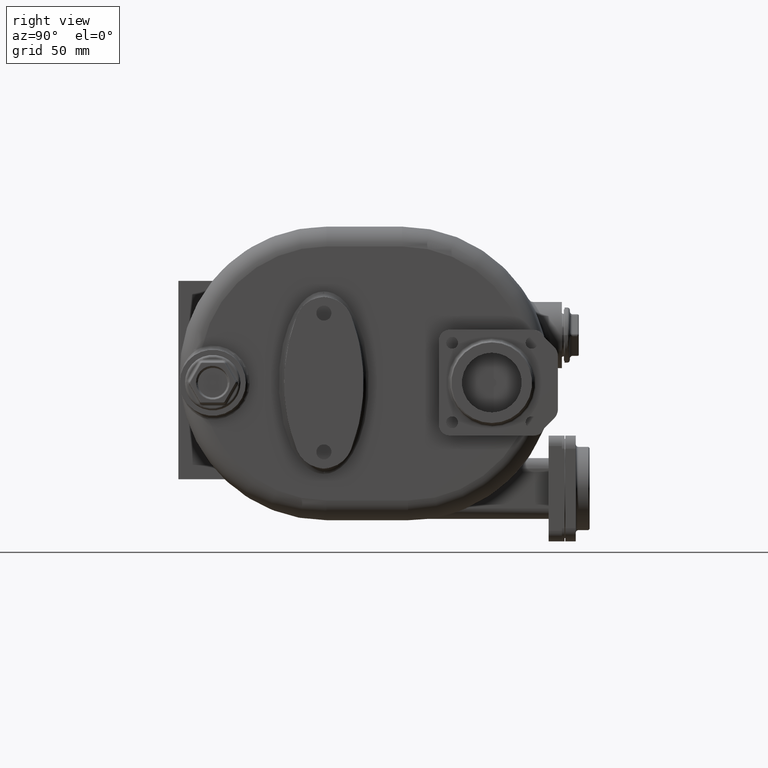
[diagram: clean part render]
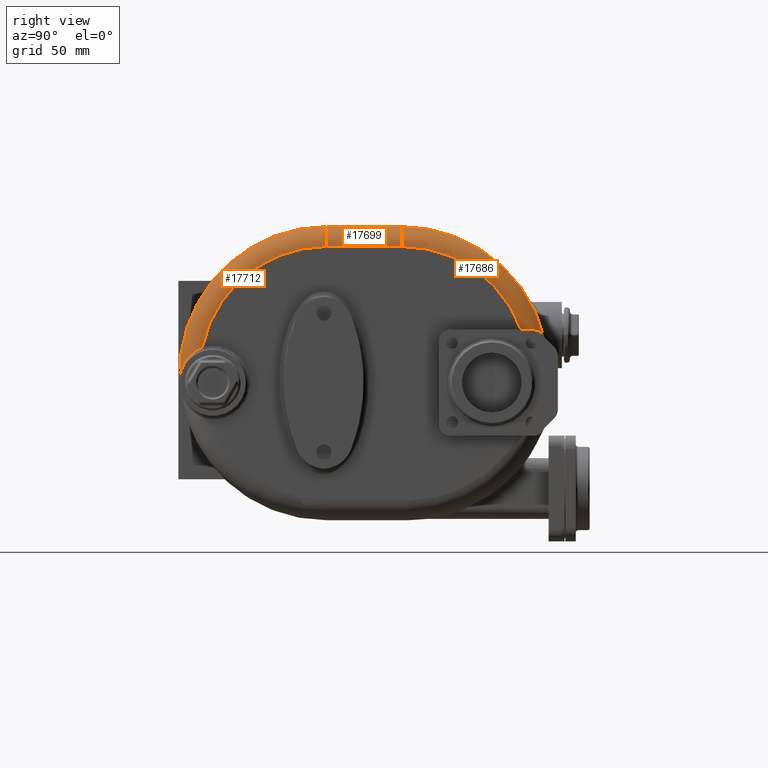
[diagram: same view with one multi-face feature highlighted, each face labeled with its STEP entity id]
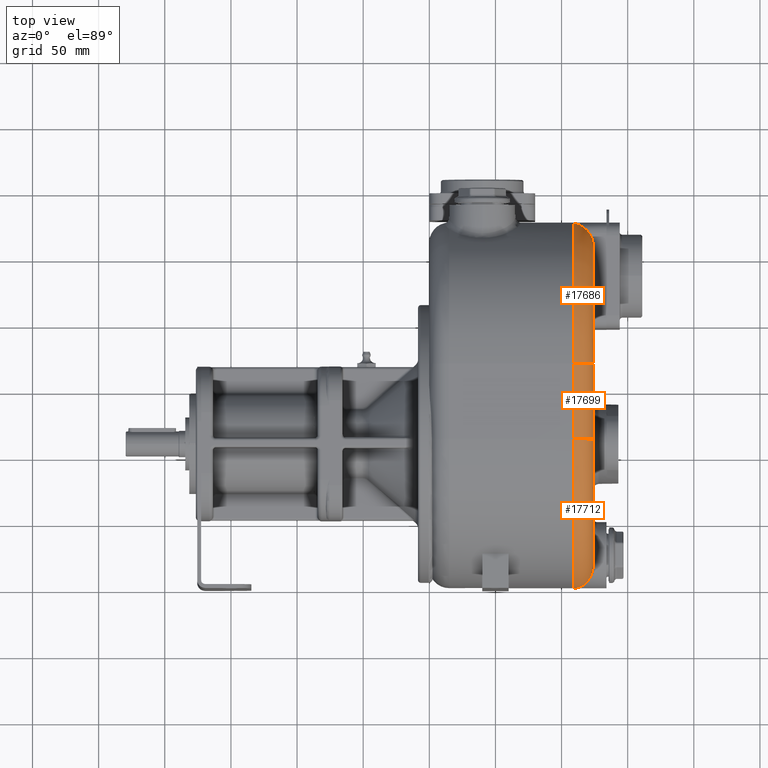
[diagram: same view with one multi-face feature highlighted, each face labeled with its STEP entity id]
A machine part, right view. The highlighted faces form ONE feature: a constant-radius fillet chain: 3 tangent blend faces with common blend radius 15 mm. The faces share edges in the B-rep.
A second angle (top view) of the same feature is appended — it is thin or edge-on in the first view.
Their STEP definitions:
[1] entity #17686 (Torus):
#1516=CARTESIAN_POINT('',(7.4E1,1.690800320256E2,0.E0));
#1517=DIRECTION('',(1.E0,0.E0,0.E0));
#1518=DIRECTION('',(0.E0,9.390612000823E-1,3.4375E-1));
#1519=AXIS2_PLACEMENT_3D('',#1516,#1517,#1518);
#2091=CARTESIAN_POINT('',(5.9E1,1.690800320256E2,0.E0));
#2092=DIRECTION('',(1.E0,0.E0,0.E0));
#2093=DIRECTION('',(0.E0,9.700967764502E-1,2.427184466019E-1));
#2094=AXIS2_PLACEMENT_3D('',#2091,#2092,#2093);
#3366=CARTESIAN_POINT('',(5.9E1,2.767607742116E2,2.694174757282E1));
#3367=CARTESIAN_POINT('',(5.919746839440E1,2.767244377512E2,2.708697709131E1));
#3368=CARTESIAN_POINT('',(5.959189906958E1,2.766437122801E2,2.737502582313E1));
#3369=CARTESIAN_POINT('',(6.018226807365E1,2.764986550011E2,2.779947994443E1));
#3370=CARTESIAN_POINT('',(6.076909059535E1,2.763304765588E2,2.821413964939E1));
#3371=CARTESIAN_POINT('',(6.135126870455E1,2.761398978827E2,2.861772689282E1));
#3372=CARTESIAN_POINT('',(6.192652221193E1,2.759281828301E2,2.900820952384E1));
#3373=CARTESIAN_POINT('',(6.249400524739E1,2.756962599716E2,2.938461357047E1));
#3374=CARTESIAN_POINT('',(6.305169911184E1,2.754456507436E2,2.974525286864E1));
#3375=CARTESIAN_POINT('',(6.359874964708E1,2.751775402531E2,3.008929529776E1));
#3376=CARTESIAN_POINT('',(6.413378455740E1,2.748934390566E2,3.041564278407E1));
#3377=CARTESIAN_POINT('',(6.465549847296E1,2.745949950051E2,3.072334993618E1));
#3378=CARTESIAN_POINT('',(6.516348937629E1,2.742834123424E2,3.101207436872E1));
#3379=CARTESIAN_POINT('',(6.565622520677E1,2.739606740147E2,3.128091283102E1));
#3380=CARTESIAN_POINT('',(6.613358402329E1,2.736279684324E2,3.152984096668E1));
#3381=CARTESIAN_POINT('',(6.659495161829E1,2.732868080250E2,3.175860693396E1));
#3382=CARTESIAN_POINT('',(6.703939250637E1,2.729390623369E2,3.196691293706E1));
#3383=CARTESIAN_POINT('',(6.746733062942E1,2.725855783424E2,3.215516750526E1));
#3384=CARTESIAN_POINT('',(6.787830842109E1,2.722278751530E2,3.232339614360E1));
#3385=CARTESIAN_POINT('',(6.827171179971E1,2.718677220485E2,3.247168145780E1));
#3386=CARTESIAN_POINT('',(6.864818580608E1,2.715057571573E2,3.260064095354E1));
#3387=CARTESIAN_POINT('',(6.900798622962E1,2.711428920063E2,3.271072580022E1));
#3388=CARTESIAN_POINT('',(6.935110827882E1,2.707802913629E2,3.280233887067E1));
#3389=CARTESIAN_POINT('',(6.967763384464E1,2.704190635248E2,3.287597545347E1));
#3390=CARTESIAN_POINT('',(6.998847065243E1,2.700593372848E2,3.293230015917E1));
#3391=CARTESIAN_POINT('',(7.028345301758E1,2.697024194876E2,3.297176426617E1));
#3392=CARTESIAN_POINT('',(7.056321356358E1,2.693486755321E2,3.299498251427E1));
#3393=CARTESIAN_POINT('',(7.073960245047E1,2.691156670345E2,3.3E1));
#3394=CARTESIAN_POINT('',(7.082531400098E1,2.69E2,3.3E1));
#3396=CARTESIAN_POINT('',(7.082531400098E1,2.69E2,3.3E1));
#3397=CARTESIAN_POINT('',(7.093651673634E1,2.688499328205E2,3.3E1));
#3398=CARTESIAN_POINT('',(7.115385606143E1,2.685453931682E2,3.3E1));
#3399=CARTESIAN_POINT('',(7.146479466459E1,2.680749577905E2,3.3E1));
#3400=CARTESIAN_POINT('',(7.175986972182E1,2.675918234654E2,3.3E1));
#3401=CARTESIAN_POINT('',(7.203879027929E1,2.670961937543E2,3.3E1));
#3402=CARTESIAN_POINT('',(7.230087186102E1,2.665890003929E2,3.3E1));
#3403=CARTESIAN_POINT('',(7.254588563776E1,2.660703604195E2,3.3E1));
#3404=CARTESIAN_POINT('',(7.277311023258E1,2.655414812383E2,3.3E1));
#3405=CARTESIAN_POINT('',(7.298238926181E1,2.650023732337E2,3.3E1));
#3406=CARTESIAN_POINT('',(7.317306629343E1,2.644543438937E2,3.3E1));
#3407=CARTESIAN_POINT('',(7.334496570226E1,2.638975145609E2,3.3E1));
#3408=CARTESIAN_POINT('',(7.349758226805E1,2.633330365235E2,3.3E1));
#3409=CARTESIAN_POINT('',(7.363063964581E1,2.627615297048E2,3.3E1));
#3410=CARTESIAN_POINT('',(7.374385511951E1,2.621836104233E2,3.3E1));
#3411=CARTESIAN_POINT('',(7.383688466086E1,2.616005349381E2,3.3E1));
#3412=CARTESIAN_POINT('',(7.390958458452E1,2.610124800344E2,3.3E1));
#3413=CARTESIAN_POINT('',(7.396166028127E1,2.604210866882E2,3.3E1));
#3414=CARTESIAN_POINT('',(7.399301759199E1,2.598264456987E2,3.3E1));
#3415=CARTESIAN_POINT('',(7.4E1,2.594289881420E2,3.3E1));
#3416=CARTESIAN_POINT('',(7.4E1,2.592299072335E2,3.3E1));
#3418=CARTESIAN_POINT('',(5.9E1,1.690800320256E2,9.6E1));
#3419=DIRECTION('',(0.E0,-1.E0,0.E0));
#3420=DIRECTION('',(1.E0,0.E0,0.E0));
#3421=AXIS2_PLACEMENT_3D('',#3418,#3419,#3420);
#11711=CARTESIAN_POINT('',(7.4E1,1.690800320256E2,9.6E1));
#11713=VERTEX_POINT('',#11711);
#11715=CARTESIAN_POINT('',(5.9E1,1.690800320256E2,1.11E2));
#11717=VERTEX_POINT('',#11715);
#11719=CARTESIAN_POINT('',(7.4E1,2.592299072335E2,3.3E1));
#11720=VERTEX_POINT('',#11719);
#11721=CARTESIAN_POINT('',(5.9E1,2.767607742116E2,2.694174757282E1));
#11722=VERTEX_POINT('',#11721);
#11723=VERTEX_POINT('',#3394);
#17672=CARTESIAN_POINT('',(5.9E1,1.690800320256E2,0.E0));
#17673=DIRECTION('',(-1.E0,0.E0,0.E0));
#17674=DIRECTION('',(0.E0,9.718786015261E-1,2.354824492305E-1));
#17675=AXIS2_PLACEMENT_3D('',#17672,#17673,#17674);
#17676=TOROIDAL_SURFACE('',#17675,9.6E1,1.5E1);
#17677=ORIENTED_EDGE('',*,*,#15140,.T.);
#17679=ORIENTED_EDGE('',*,*,#17678,.T.);
#17680=ORIENTED_EDGE('',*,*,#15496,.F.);
#17681=ORIENTED_EDGE('',*,*,#14981,.T.);
#17683=ORIENTED_EDGE('',*,*,#17682,.T.);
#17684=EDGE_LOOP('',(#17677,#17679,#17680,#17681,#17683));
#17685=FACE_OUTER_BOUND('',#17684,.F.);
#17686=ADVANCED_FACE('',(#17685),#17676,.T.);
#1520=CIRCLE('',#1519,9.6E1);
#2095=CIRCLE('',#2094,1.11E2);
#3395=B_SPLINE_CURVE_WITH_KNOTS('',3,(#3366,#3367,#3368,#3369,#3370,#3371,#3372,
#3373,#3374,#3375,#3376,#3377,#3378,#3379,#3380,#3381,#3382,#3383,#3384,#3385,
#3386,#3387,#3388,#3389,#3390,#3391,#3392,#3393,#3394),.UNSPECIFIED.,.F.,.F.,(4,
1,1,1,1,1,1,1,1,1,1,1,1,1,1,1,1,1,1,1,1,1,1,1,1,1,4),(0.E0,3.846153846154E-2,
7.692307692308E-2,1.153846153846E-1,1.538461538462E-1,1.923076923077E-1,
2.307692307692E-1,2.692307692308E-1,3.076923076923E-1,3.461538461538E-1,
3.846153846154E-1,4.230769230769E-1,4.615384615385E-1,5.E-1,5.384615384615E-1,
5.769230769231E-1,6.153846153846E-1,6.538461538462E-1,6.923076923077E-1,
7.307692307692E-1,7.692307692308E-1,8.076923076923E-1,8.461538461538E-1,
8.846153846154E-1,9.230769230769E-1,9.615384615385E-1,1.E0),.UNSPECIFIED.);
#3417=B_SPLINE_CURVE_WITH_KNOTS('',3,(#3396,#3397,#3398,#3399,#3400,#3401,#3402,
#3403,#3404,#3405,#3406,#3407,#3408,#3409,#3410,#3411,#3412,#3413,#3414,#3415,
#3416),.UNSPECIFIED.,.F.,.F.,(4,1,1,1,1,1,1,1,1,1,1,1,1,1,1,1,1,1,4),(0.E0,
5.555555555556E-2,1.111111111111E-1,1.666666666667E-1,2.222222222222E-1,
2.777777777778E-1,3.333333333333E-1,3.888888888889E-1,4.444444444444E-1,5.E-1,
5.555555555556E-1,6.111111111111E-1,6.666666666667E-1,7.222222222222E-1,
7.777777777778E-1,8.333333333333E-1,8.888888888889E-1,9.444444444444E-1,1.E0),
.UNSPECIFIED.);
#3422=CIRCLE('',#3421,1.5E1);
#14981=EDGE_CURVE('',#11722,#11723,#3395,.T.);
#15140=EDGE_CURVE('',#11720,#11713,#1520,.T.);
#15496=EDGE_CURVE('',#11722,#11717,#2095,.T.);
#17678=EDGE_CURVE('',#11713,#11717,#3422,.T.);
#17682=EDGE_CURVE('',#11723,#11720,#3417,.T.);
[2] entity #17699 (Cylinder):
#1512=DIRECTION('',(0.E0,-1.E0,0.E0));
#1513=VECTOR('',#1512,5.708003202563E1);
#1514=CARTESIAN_POINT('',(7.4E1,1.690800320256E2,9.6E1));
#1515=LINE('',#1514,#1513);
#2028=DIRECTION('',(0.E0,-1.E0,0.E0));
#2029=VECTOR('',#2028,5.708003202559E1);
#2030=CARTESIAN_POINT('',(5.9E1,1.690800320256E2,1.11E2));
#2031=LINE('',#2030,#2029);
#3418=CARTESIAN_POINT('',(5.9E1,1.690800320256E2,9.6E1));
#3419=DIRECTION('',(0.E0,-1.E0,0.E0));
#3420=DIRECTION('',(1.E0,0.E0,0.E0));
#3421=AXIS2_PLACEMENT_3D('',#3418,#3419,#3420);
#3483=CARTESIAN_POINT('',(5.9E1,1.12E2,9.6E1));
#3484=DIRECTION('',(0.E0,-1.E0,0.E0));
#3485=DIRECTION('',(1.E0,0.E0,0.E0));
#3486=AXIS2_PLACEMENT_3D('',#3483,#3484,#3485);
#11711=CARTESIAN_POINT('',(7.4E1,1.690800320256E2,9.6E1));
#11712=CARTESIAN_POINT('',(7.4E1,1.12E2,9.6E1));
#11713=VERTEX_POINT('',#11711);
#11714=VERTEX_POINT('',#11712);
#11715=CARTESIAN_POINT('',(5.9E1,1.690800320256E2,1.11E2));
#11716=CARTESIAN_POINT('',(5.9E1,1.12E2,1.11E2));
#11717=VERTEX_POINT('',#11715);
#11718=VERTEX_POINT('',#11716);
#17687=CARTESIAN_POINT('',(5.9E1,1.699072227307E2,9.6E1));
#17688=DIRECTION('',(0.E0,-1.E0,0.E0));
#17689=DIRECTION('',(1.E0,0.E0,0.E0));
#17690=AXIS2_PLACEMENT_3D('',#17687,#17688,#17689);
#17691=CYLINDRICAL_SURFACE('',#17690,1.5E1);
#17692=ORIENTED_EDGE('',*,*,#15138,.T.);
#17694=ORIENTED_EDGE('',*,*,#17693,.T.);
#17695=ORIENTED_EDGE('',*,*,#15482,.F.);
#17696=ORIENTED_EDGE('',*,*,#17678,.F.);
#17697=EDGE_LOOP('',(#17692,#17694,#17695,#17696));
#17698=FACE_OUTER_BOUND('',#17697,.F.);
#17699=ADVANCED_FACE('',(#17698),#17691,.T.);
#3422=CIRCLE('',#3421,1.5E1);
#3487=CIRCLE('',#3486,1.5E1);
#15138=EDGE_CURVE('',#11713,#11714,#1515,.T.);
#15482=EDGE_CURVE('',#11717,#11718,#2031,.T.);
#17678=EDGE_CURVE('',#11713,#11717,#3422,.T.);
#17693=EDGE_CURVE('',#11714,#11718,#3487,.T.);
[3] entity #17712 (Torus):
#1507=CARTESIAN_POINT('',(7.4E1,1.12E2,0.E0));
#1508=DIRECTION('',(1.E0,0.E0,0.E0));
#1509=DIRECTION('',(0.E0,0.E0,1.E0));
#1510=AXIS2_PLACEMENT_3D('',#1507,#1508,#1509);
#1868=CARTESIAN_POINT('',(5.9E1,1.12E2,0.E0));
#1869=DIRECTION('',(1.E0,0.E0,0.E0));
#1870=DIRECTION('',(0.E0,0.E0,1.E0));
#1871=AXIS2_PLACEMENT_3D('',#1868,#1869,#1870);
#3423=CARTESIAN_POINT('',(5.899999999683E1,1.093646326384E0,-4.558222339772E0));
#3424=CARTESIAN_POINT('',(5.903516390582E1,1.093645443167E0,-4.558109666710E0));
#3425=CARTESIAN_POINT('',(5.910585212802E1,1.093712664028E0,-4.554375527491E0));
#3426=CARTESIAN_POINT('',(5.921261581553E1,1.094444736616E0,-4.544375485974E0));
#3427=CARTESIAN_POINT('',(5.932127580690E1,1.095643724331E0,-4.526580419853E0));
#3428=CARTESIAN_POINT('',(5.943245064643E1,1.097400122014E0,-4.501196089746E0));
#3429=CARTESIAN_POINT('',(5.954672512987E1,1.099744455395E0,-4.467045887852E0));
#3430=CARTESIAN_POINT('',(5.966450182566E1,1.102752768761E0,-4.423545842997E0));
#3431=CARTESIAN_POINT('',(5.978695512326E1,1.106536544096E0,-4.369759807809E0));
#3432=CARTESIAN_POINT('',(5.991863313025E1,1.111378562668E0,-4.302648045104E0));
#3433=CARTESIAN_POINT('',(6.006353441733E1,1.117684533036E0,-4.218157070819E0));
#3434=CARTESIAN_POINT('',(6.022129492605E1,1.125796565850E0,-4.114368699312E0));
#3435=CARTESIAN_POINT('',(6.038966079280E1,1.135941442840E0,-3.990609453592E0));
#3436=CARTESIAN_POINT('',(6.057049508462E1,1.148617011430E0,-3.843495384098E0));
#3437=CARTESIAN_POINT('',(6.076629395225E1,1.164545967974E0,-3.669114768959E0));
#3438=CARTESIAN_POINT('',(6.097917903196E1,1.184640274317E0,-3.464039655399E0));
#3439=CARTESIAN_POINT('',(6.121034358513E1,1.209883076884E0,-3.224018998522E0));
#3440=CARTESIAN_POINT('',(6.146132932017E1,1.241556900750E0,-2.945644411446E0));
#3441=CARTESIAN_POINT('',(6.173373164181E1,1.281226102266E0,-2.625632696241E0));
#3442=CARTESIAN_POINT('',(6.202992366742E1,1.330891140225E0,-2.258629715281E0));
#3443=CARTESIAN_POINT('',(6.235266244673E1,1.393127801764E0,-1.840276345668E0));
#3444=CARTESIAN_POINT('',(6.270542913802E1,1.471243058738E0,-1.363643995873E0));
#3445=CARTESIAN_POINT('',(6.309243958759E1,1.569569922772E0,
-8.217885811717E-1));
#3446=CARTESIAN_POINT('',(6.351782750994E1,1.693554930227E0,
-2.067237698218E-1));
#3447=CARTESIAN_POINT('',(6.398777318508E1,1.850491550237E0,4.921266148256E-1));
#3448=CARTESIAN_POINT('',(6.451711548714E1,2.053820743384E0,1.299722093649E0));
#3449=CARTESIAN_POINT('',(6.508490601498E1,2.305309164020E0,2.186357343773E0));
#3450=CARTESIAN_POINT('',(6.565936924102E1,2.597051065920E0,3.101531710496E0));
#3451=CARTESIAN_POINT('',(6.621031164502E1,2.913645827058E0,3.993962241456E0));
#3452=CARTESIAN_POINT('',(6.674656993093E1,3.258188471281E0,4.875124901900E0));
#3453=CARTESIAN_POINT('',(6.726735590007E1,3.629810174473E0,5.742156258984E0));
#3454=CARTESIAN_POINT('',(6.777004177829E1,4.025595219076E0,6.589331033677E0));
#3455=CARTESIAN_POINT('',(6.825458452284E1,4.444320079709E0,7.415649359446E0));
#3456=CARTESIAN_POINT('',(6.872068390750E1,4.884603867434E0,8.219836079150E0));
#3457=CARTESIAN_POINT('',(6.916780649495E1,5.344790938057E0,9.000526857096E0));
#3458=CARTESIAN_POINT('',(6.959551445712E1,5.823213197602E0,9.756541524794E0));
#3459=CARTESIAN_POINT('',(7.000350376933E1,6.318282577911E0,1.048711075603E1));
#3460=CARTESIAN_POINT('',(7.039148020803E1,6.828357798489E0,1.119154427958E1));
#3461=CARTESIAN_POINT('',(7.075925351473E1,7.351861435885E0,1.186934445168E1));
#3462=CARTESIAN_POINT('',(7.110663302950E1,7.887164488044E0,1.252013888038E1));
#3463=CARTESIAN_POINT('',(7.143350313669E1,8.432667537810E0,1.314366122419E1));
#3464=CARTESIAN_POINT('',(7.173986886508E1,8.986913448833E0,1.373986936416E1));
#3465=CARTESIAN_POINT('',(7.202573425666E1,9.548411502810E0,1.430880624192E1));
#3466=CARTESIAN_POINT('',(7.229115983699E1,1.011570714669E1,1.485057895429E1));
#3467=CARTESIAN_POINT('',(7.253633050093E1,1.068756621728E1,1.536549965758E1));
#3468=CARTESIAN_POINT('',(7.276142506826E1,1.126274376120E1,1.585395334228E1));
#3469=CARTESIAN_POINT('',(7.296666219006E1,1.184006100135E1,1.631638405673E1));
#3470=CARTESIAN_POINT('',(7.315230502308E1,1.241843311329E1,1.675328321513E1));
#3471=CARTESIAN_POINT('',(7.331866323435E1,1.299692005857E1,1.716520882045E1));
#3472=CARTESIAN_POINT('',(7.346601632261E1,1.357449778155E1,1.755275734250E1));
#3473=CARTESIAN_POINT('',(7.359468621800E1,1.415025115964E1,1.791655671576E1));
#3474=CARTESIAN_POINT('',(7.370502834271E1,1.472339423966E1,1.825725714688E1));
#3475=CARTESIAN_POINT('',(7.379742363094E1,1.529333358758E1,1.857558792737E1));
#3476=CARTESIAN_POINT('',(7.387222672912E1,1.585943269281E1,1.887232565443E1));
#3477=CARTESIAN_POINT('',(7.392980578356E1,1.642119521376E1,1.914822491976E1));
#3478=CARTESIAN_POINT('',(7.397051848075E1,1.697827701764E1,1.940401132880E1));
#3479=CARTESIAN_POINT('',(7.399469897908E1,1.753023538529E1,1.964041549998E1));
#3480=CARTESIAN_POINT('',(7.399999342684E1,1.789459046853E1,1.978567909966E1));
#3481=CARTESIAN_POINT('',(7.399999609717E1,1.807573326154E1,1.985527873442E1));
#3483=CARTESIAN_POINT('',(5.9E1,1.12E2,9.6E1));
#3484=DIRECTION('',(0.E0,-1.E0,0.E0));
#3485=DIRECTION('',(1.E0,0.E0,0.E0));
#3486=AXIS2_PLACEMENT_3D('',#3483,#3484,#3485);
#11712=CARTESIAN_POINT('',(7.4E1,1.12E2,9.6E1));
#11714=VERTEX_POINT('',#11712);
#11716=CARTESIAN_POINT('',(5.9E1,1.12E2,1.11E2));
#11718=VERTEX_POINT('',#11716);
#11771=VERTEX_POINT('',#3423);
#11772=VERTEX_POINT('',#3481);
#17700=CARTESIAN_POINT('',(5.9E1,1.12E2,0.E0));
#17701=DIRECTION('',(-1.E0,0.E0,0.E0));
#17702=DIRECTION('',(0.E0,7.452099538963E-3,9.999722327207E-1));
#17703=AXIS2_PLACEMENT_3D('',#17700,#17701,#17702);
#17704=TOROIDAL_SURFACE('',#17703,9.6E1,1.5E1);
#17706=ORIENTED_EDGE('',*,*,#17705,.F.);
#17707=ORIENTED_EDGE('',*,*,#15405,.F.);
#17708=ORIENTED_EDGE('',*,*,#17693,.F.);
#17709=ORIENTED_EDGE('',*,*,#15136,.T.);
#17710=EDGE_LOOP('',(#17706,#17707,#17708,#17709));
#17711=FACE_OUTER_BOUND('',#17710,.F.);
#17712=ADVANCED_FACE('',(#17711),#17704,.T.);
#1511=CIRCLE('',#1510,9.6E1);
#1872=CIRCLE('',#1871,1.11E2);
#3482=B_SPLINE_CURVE_WITH_KNOTS('',3,(#3423,#3424,#3425,#3426,#3427,#3428,#3429,
#3430,#3431,#3432,#3433,#3434,#3435,#3436,#3437,#3438,#3439,#3440,#3441,#3442,
#3443,#3444,#3445,#3446,#3447,#3448,#3449,#3450,#3451,#3452,#3453,#3454,#3455,
#3456,#3457,#3458,#3459,#3460,#3461,#3462,#3463,#3464,#3465,#3466,#3467,#3468,
#3469,#3470,#3471,#3472,#3473,#3474,#3475,#3476,#3477,#3478,#3479,#3480,#3481),
.UNSPECIFIED.,.F.,.F.,(4,1,1,1,1,1,1,1,1,1,1,1,1,1,1,1,1,1,1,1,1,1,1,1,1,1,1,1,
1,1,1,1,1,1,1,1,1,1,1,1,1,1,1,1,1,1,1,1,1,1,1,1,1,1,1,1,4),(0.E0,
1.785714285714E-2,3.571428571429E-2,5.357142857143E-2,7.142857142857E-2,
8.928571428571E-2,1.071428571429E-1,1.25E-1,1.428571428571E-1,1.607142857143E-1,
1.785714285714E-1,1.964285714286E-1,2.142857142857E-1,2.321428571429E-1,2.5E-1,
2.678571428571E-1,2.857142857143E-1,3.035714285714E-1,3.214285714286E-1,
3.392857142857E-1,3.571428571429E-1,3.75E-1,3.928571428571E-1,4.107142857143E-1,
4.285714285714E-1,4.464285714286E-1,4.642857142857E-1,4.821428571429E-1,5.E-1,
5.178571428571E-1,5.357142857143E-1,5.535714285714E-1,5.714285714286E-1,
5.892857142857E-1,6.071428571429E-1,6.25E-1,6.428571428571E-1,6.607142857143E-1,
6.785714285714E-1,6.964285714286E-1,7.142857142857E-1,7.321428571429E-1,7.5E-1,
7.678571428571E-1,7.857142857143E-1,8.035714285714E-1,8.214285714286E-1,
8.392857142857E-1,8.571428571429E-1,8.75E-1,8.928571428571E-1,9.107142857143E-1,
9.285714285714E-1,9.464285714286E-1,9.642857142857E-1,9.821428571429E-1,1.E0),
.UNSPECIFIED.);
#3487=CIRCLE('',#3486,1.5E1);
#15136=EDGE_CURVE('',#11714,#11772,#1511,.T.);
#15405=EDGE_CURVE('',#11718,#11771,#1872,.T.);
#17693=EDGE_CURVE('',#11714,#11718,#3487,.T.);
#17705=EDGE_CURVE('',#11771,#11772,#3482,.T.);